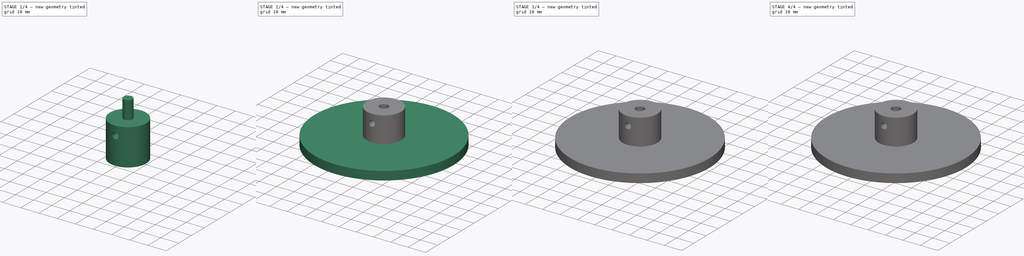
[diagram: build sequence overview — one tinted view per stage of 4, left to right]
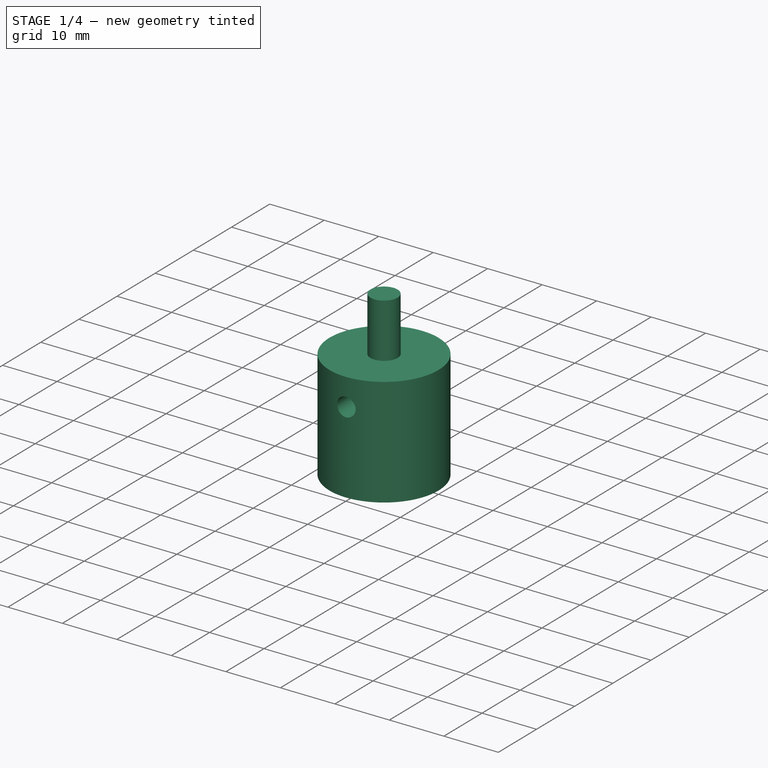
[diagram: stage 1 of 4 — iso view after this stage's code; geometry added in this stage tinted green]
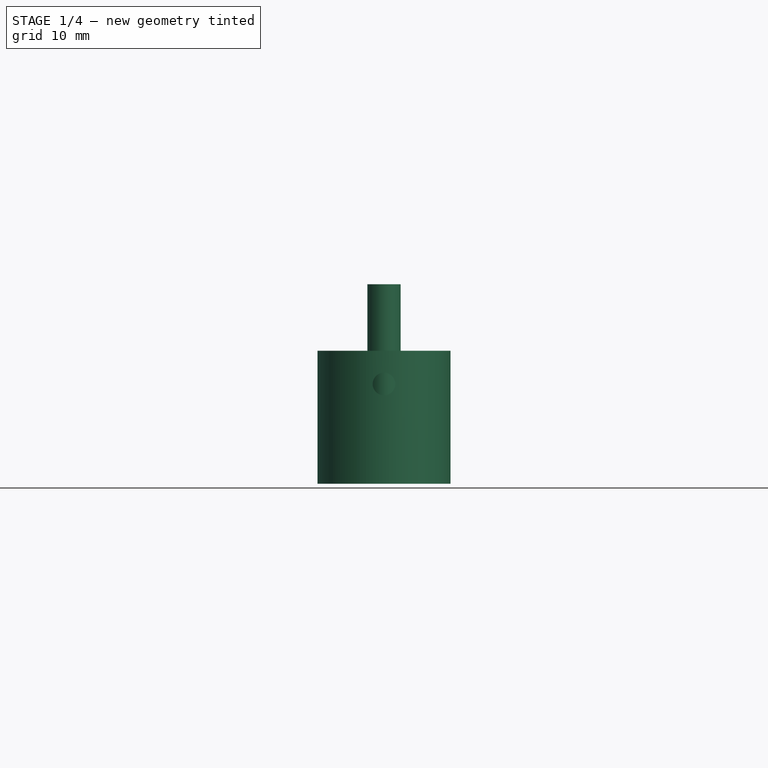
[diagram: stage 1 of 4 — front view after this stage's code; geometry added in this stage tinted green]
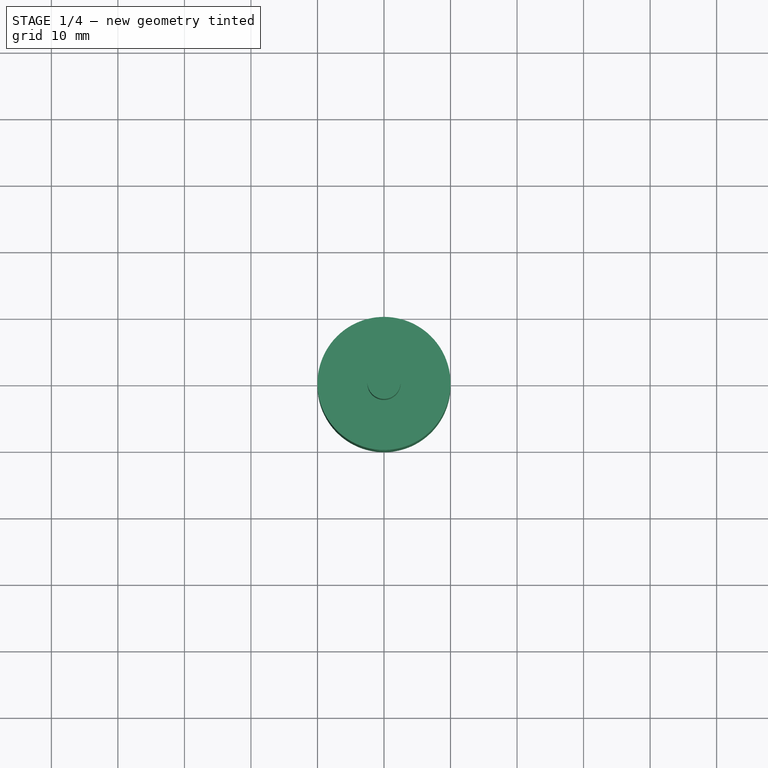
[diagram: stage 1 of 4 — top view after this stage's code; geometry added in this stage tinted green]
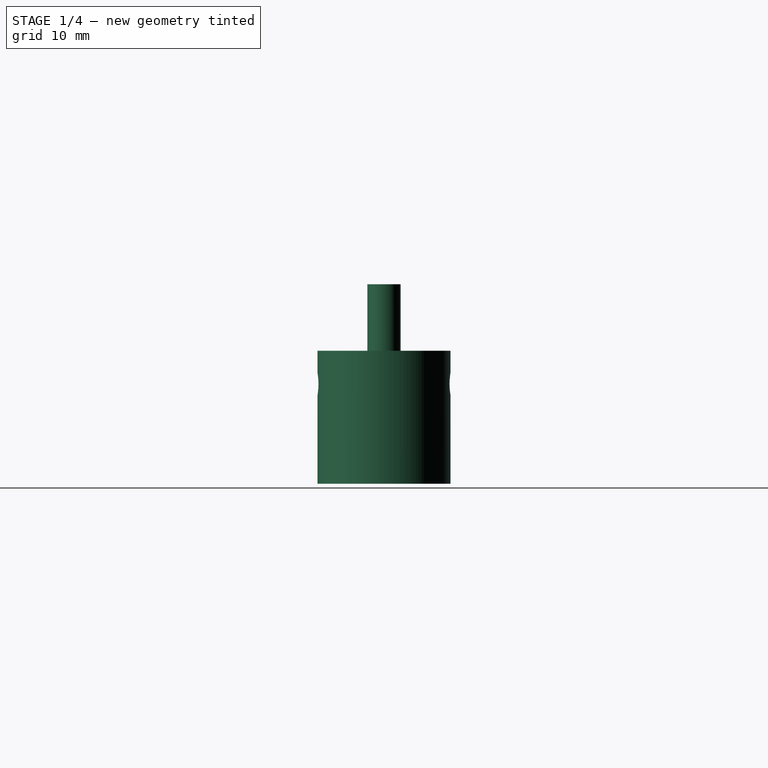
[diagram: stage 1 of 4 — right view after this stage's code; geometry added in this stage tinted green]
FCSTD DOCUMENT  (FreeCAD 0.16R6712 (Git))
Label: ls_bearing
License: All rights reserved
LicenseURL: http://en.wikipedia.org/wiki/All_rights_reserved
objects: Sketcher::SketchObject×8, PartDesign::Pad×5, Part::Cut×5, PartDesign::Revolution×1, Part::Revolution×1, Part::Extrusion×1, Part::MultiFuse×1, App::DocumentObjectGroup×1
note: 28 computed .brp shape members not serialized (recipe doc carries the construction recipe); baked Part::Feature solids carry a one-line shape summary decoded from their .brp

FEATURE [Sketcher::SketchObject] Sketch002  label="cyl"
  sketch-geometry (1):
    g0: Circle CenterX=0 CenterY=0 CenterZ=0 NormalX=0 NormalY=0 NormalZ=1 Radius=10
  constraints (2):
    c: Coincident(g0,g-1)
    c: Radius(g0) = 10
FEATURE [Sketcher::SketchObject] Sketch003  label="shaft_hole"
  sketch-geometry (1):
    g0: Circle CenterX=0 CenterY=0 CenterZ=0 NormalX=0 NormalY=0 NormalZ=1 Radius=2.5
  constraints (2):
    c: Coincident(g0,g-1)
    c: Radius(g0) = 2.5
FEATURE [PartDesign::Pad] Pad001
  Length = 20
  Length2 = 100
  Sketch = -> Sketch002
  Type = 0
FEATURE [PartDesign::Pad] Pad002  label="shaft_hole3d"
  Length = 30
  Length2 = 100
  Sketch = -> Sketch003
  Type = 0
FEATURE [Sketcher::SketchObject] Sketch004  label="set_cut"
  Placement = pos=(0,0,0) rot=(1,0,0;1.5708rad)
  sketch-geometry (1):
    g0: Circle CenterX=0 CenterY=15 CenterZ=0 NormalX=0 NormalY=0 NormalZ=1 Radius=1.7
  constraints (3):
    c: Radius(g0) = 1.7
    c: DistanceX(g0) = 0
    c: DistanceY(g0) = 15
FEATURE [PartDesign::Pad] Pad003
  Length = 30
  Length2 = 100
  Midplane = true
  Placement = pos=(0,0,0) rot=(1,0,0;1.5708rad)
  Sketch = -> Sketch004
  Type = 0
FEATURE [Part::Cut] Cut002
  Base = -> Pad001
  Tool = -> Pad003
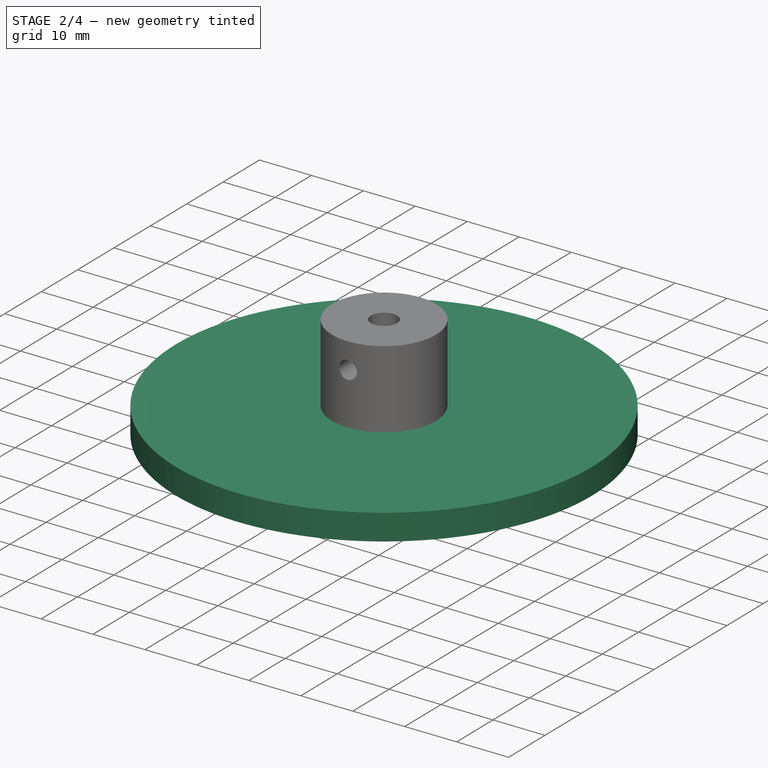
[diagram: stage 2 of 4 — iso view after this stage's code; geometry added in this stage tinted green]
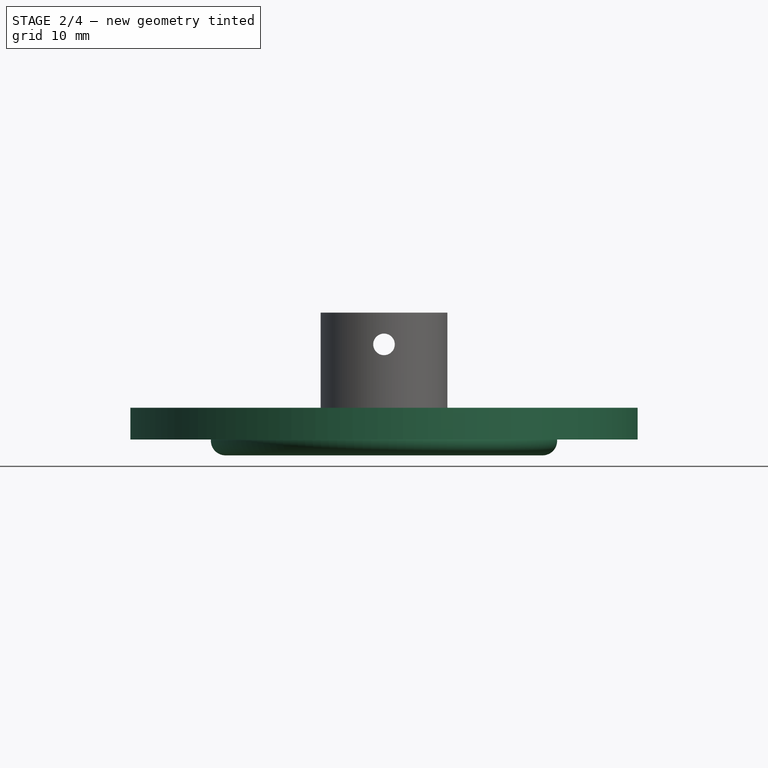
[diagram: stage 2 of 4 — front view after this stage's code; geometry added in this stage tinted green]
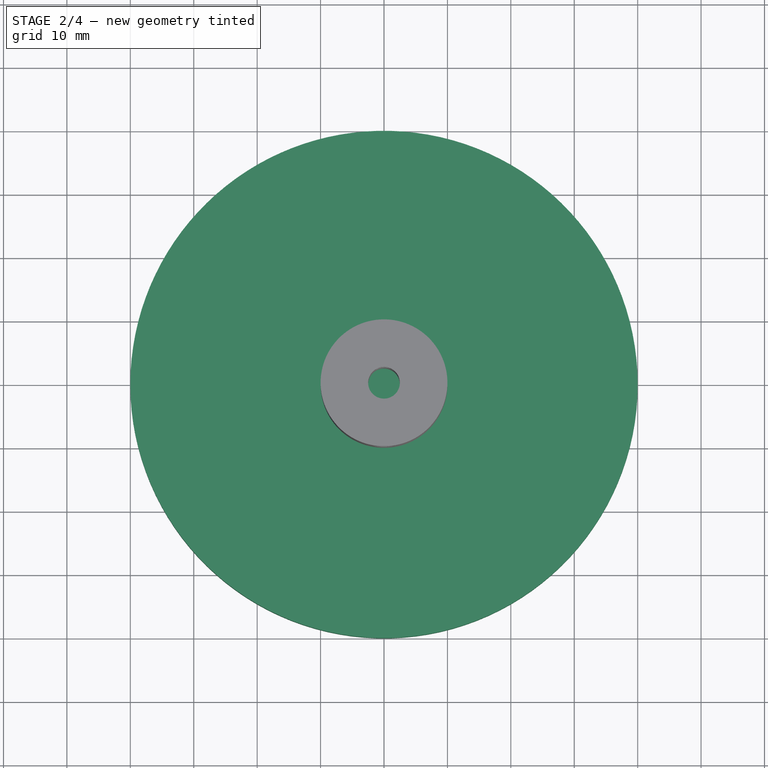
[diagram: stage 2 of 4 — top view after this stage's code; geometry added in this stage tinted green]
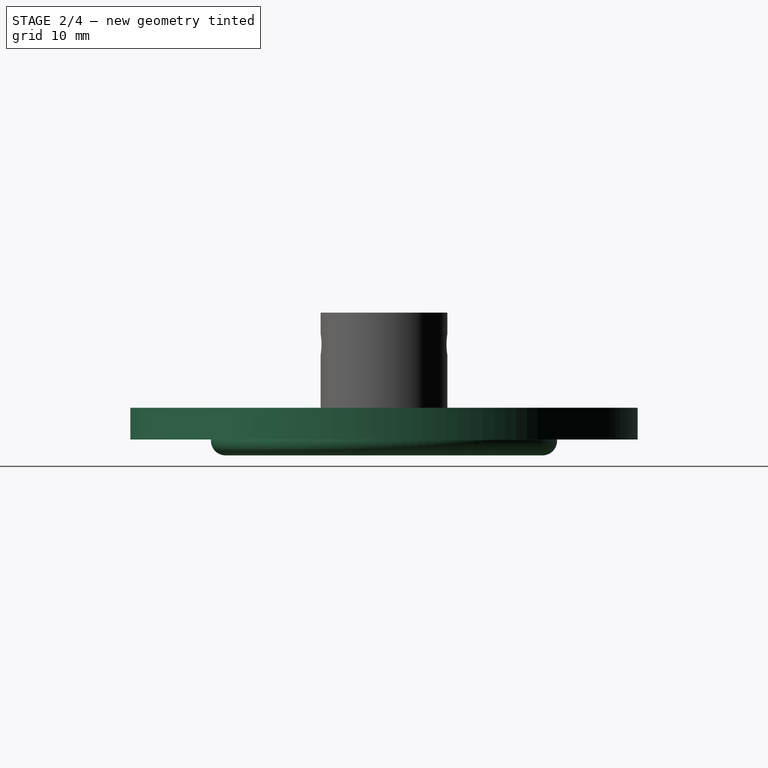
[diagram: stage 2 of 4 — right view after this stage's code; geometry added in this stage tinted green]
FEATURE [Sketcher::SketchObject] Sketch  label="Base"
  sketch-geometry (1):
    g0: Circle CenterX=0 CenterY=0 CenterZ=0 NormalX=0 NormalY=0 NormalZ=1 Radius=40
  constraints (2):
    c: Radius(g0) = 40
    c: Coincident(g0,g-1)
FEATURE [PartDesign::Pad] Pad
  Length = 5
  Length2 = 100
  Sketch = -> Sketch
  Type = 0
FEATURE [Sketcher::SketchObject] Sketch001  label="channel_bot"
  Placement = pos=(0,0,0) rot=(1,0,0;1.5708rad)
  sketch-geometry (1):
    g0: Circle CenterX=25 CenterY=-0.2 CenterZ=0 NormalX=0 NormalY=0 NormalZ=1 Radius=2.3
  constraints (3):
    c: Radius(g0) = 2.3
    c: DistanceX(g0) = 25
    c: DistanceY(g-1,g0) = -0.2
FEATURE [PartDesign::Revolution] Revolution
  Angle = 360
  Axis = (0,0,1)
  Base = (0,0,0)
  Placement = pos=(0,0,0) rot=(1,0,0;1.5708rad)
  ReferenceAxis = -> Sketch001 [V_Axis]
  Reversed = true
  Sketch = -> Sketch001
FEATURE [Part::Cut] Cut003  label="post"
  Base = -> Cut002
  Tool = -> Pad002
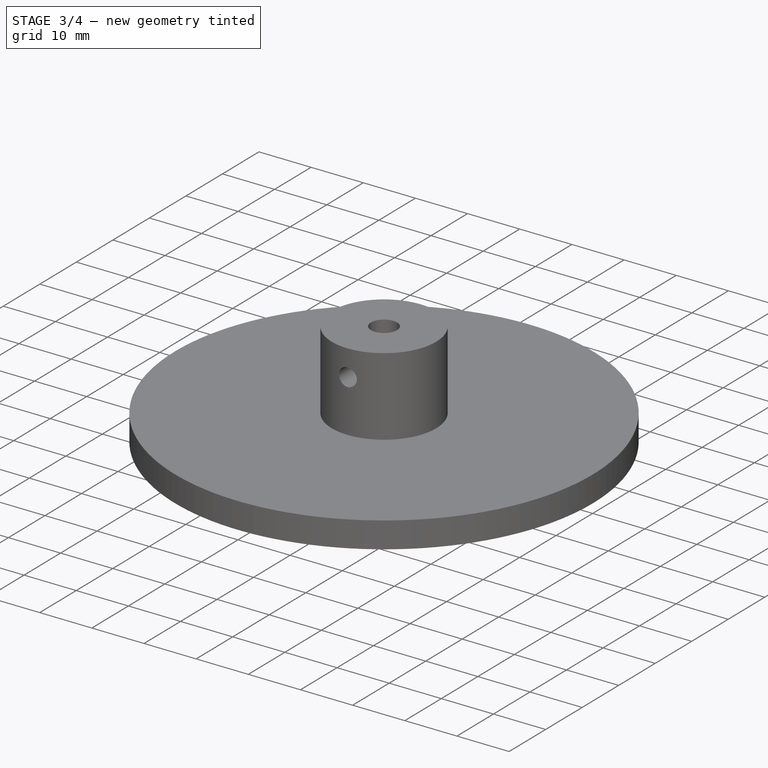
[diagram: stage 3 of 4 — iso view after this stage's code; geometry added in this stage tinted green]
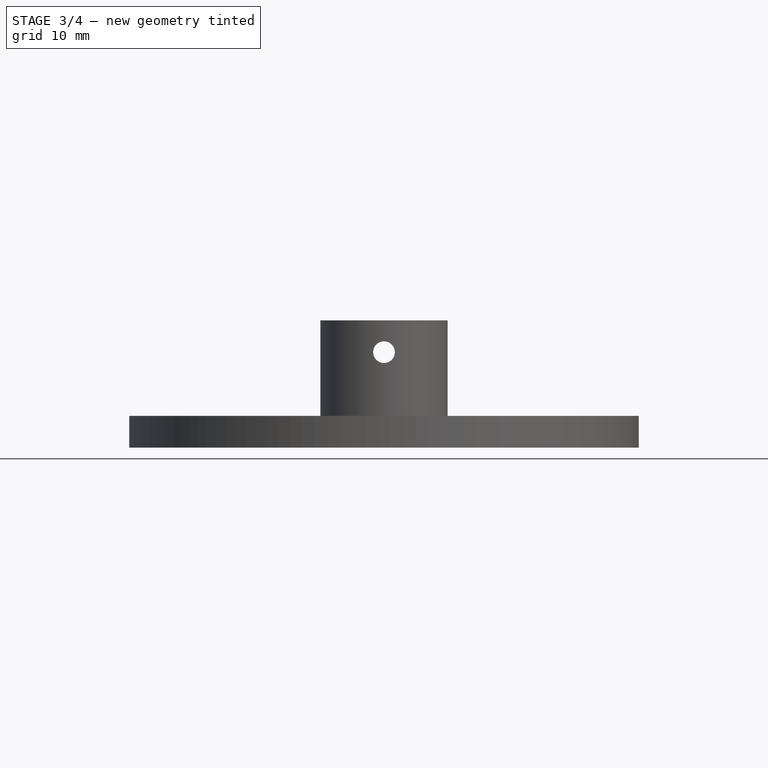
[diagram: stage 3 of 4 — front view after this stage's code; geometry added in this stage tinted green]
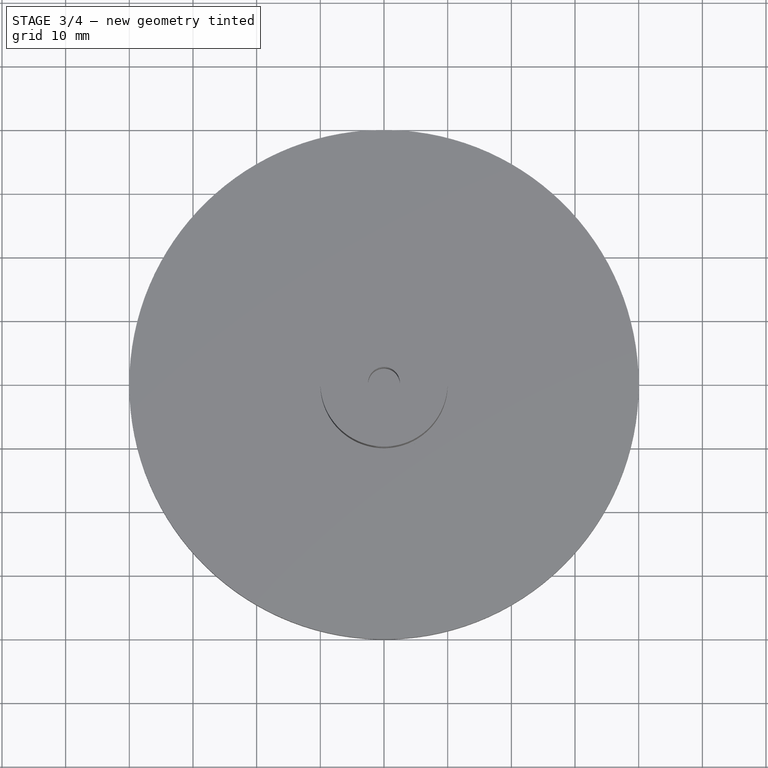
[diagram: stage 3 of 4 — top view after this stage's code; geometry added in this stage tinted green]
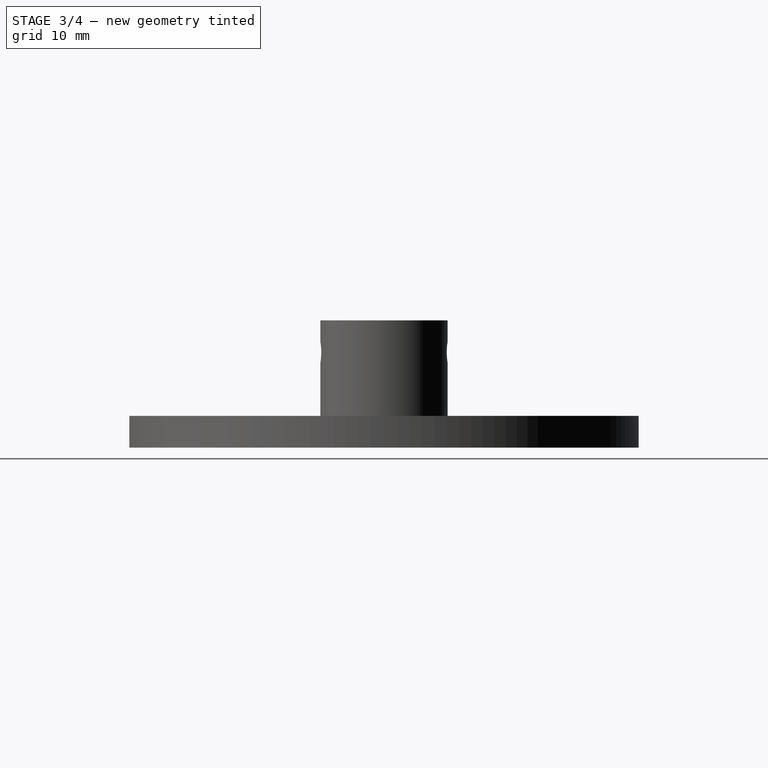
[diagram: stage 3 of 4 — right view after this stage's code; geometry added in this stage tinted green]
FEATURE [Part::Cut] Cut  label="base"
  Base = -> Pad
  Tool = -> Revolution
FEATURE [Sketcher::SketchObject] Sketch007  label="hub_hole"
  sketch-geometry (1):
    g0: Circle CenterX=0 CenterY=0 CenterZ=0 NormalX=0 NormalY=0 NormalZ=1 Radius=10.5
  constraints (2):
    c: Coincident(g0,g-1)
    c: Radius(g0) = 10.5
FEATURE [Part::Extrusion] Extrude  label="hub_hole_ex"
  Base = -> Sketch007
  Dir = (0,0,5)
  Solid = true
FEATURE [Part::MultiFuse] Fusion  label="top_bearing001"
  Shapes = -> [Cut003,Cut]
FEATURE [App::DocumentObjectGroup] Group  label="parts"
  Group = -> [Cut004,Fusion]
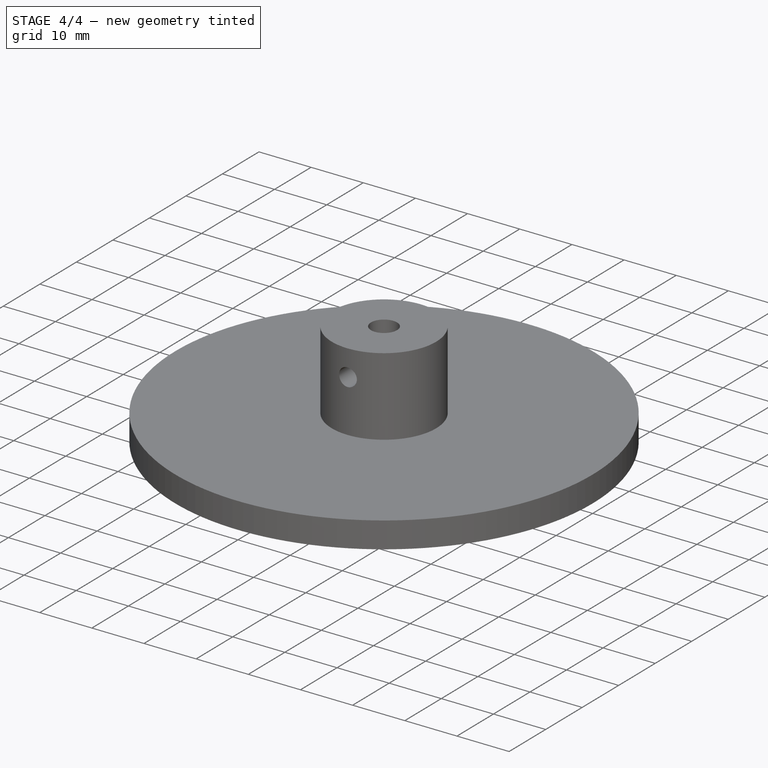
[diagram: stage 4 of 4 — iso view after this stage's code; geometry added in this stage tinted green]
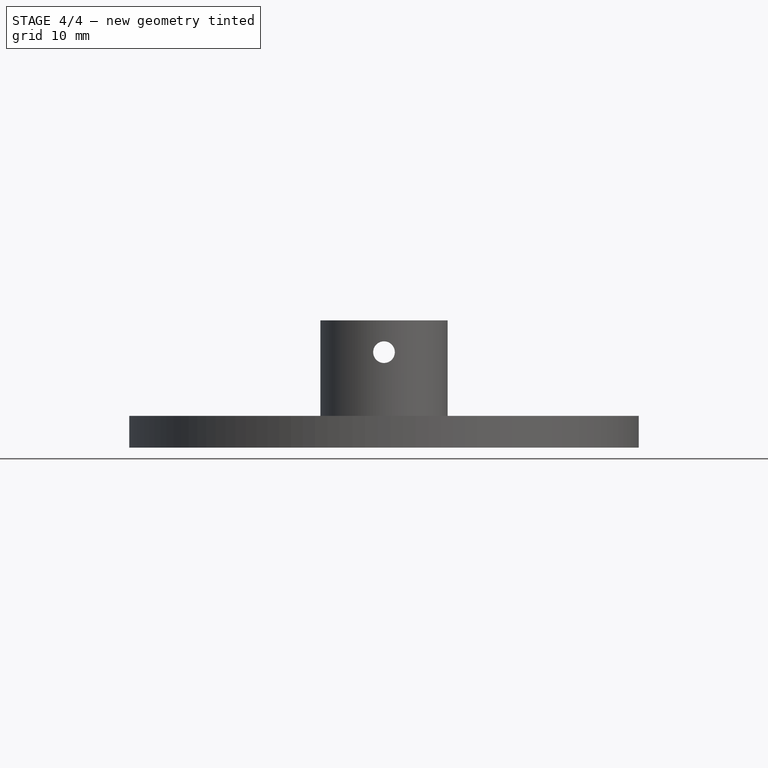
[diagram: stage 4 of 4 — front view after this stage's code; geometry added in this stage tinted green]
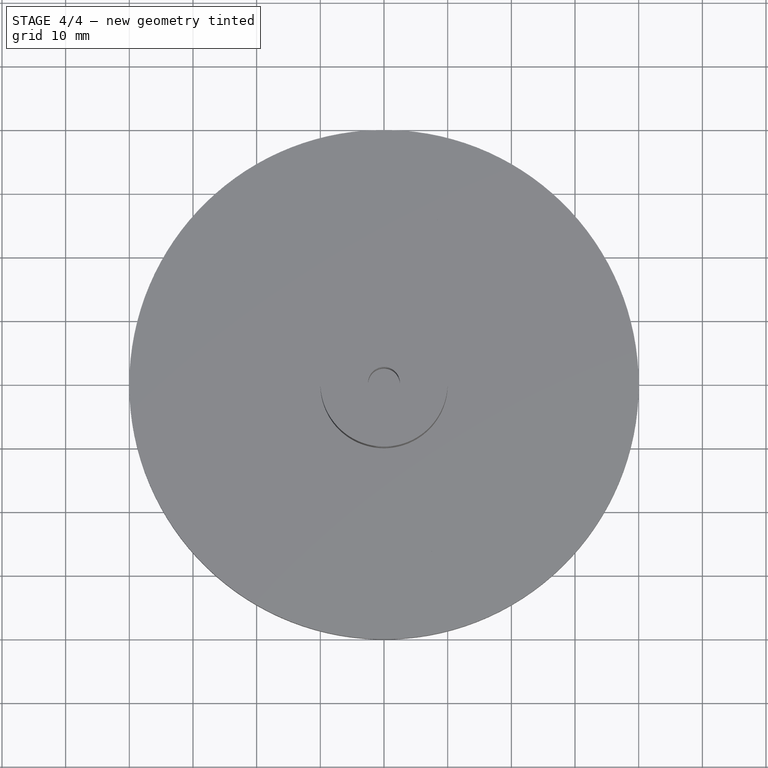
[diagram: stage 4 of 4 — top view after this stage's code; geometry added in this stage tinted green]
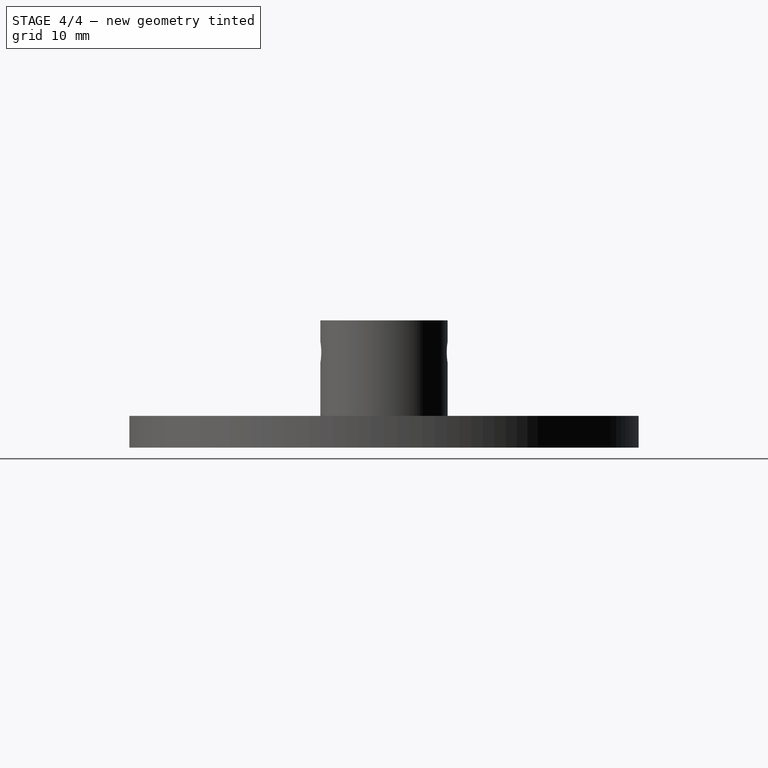
[diagram: stage 4 of 4 — right view after this stage's code; geometry added in this stage tinted green]
FEATURE [Sketcher::SketchObject] Sketch005  label="channel_top"
  Placement = pos=(0,0,0) rot=(1,0,0;1.5708rad)
  sketch-geometry (1):
    g0: Circle CenterX=25 CenterY=5.4 CenterZ=0 NormalX=0 NormalY=0 NormalZ=1 Radius=2.3
  constraints (3):
    c: Radius(g0) = 2.3
    c: DistanceX(g0) = 25
    c: DistanceY(g-1,g0) = 5.4
FEATURE [Part::Revolution] Revolve
  Angle = 360
  Axis = (0,0,1)
  Base = (0,0,0)
  Solid = true
  Source = -> Sketch005
FEATURE [Sketcher::SketchObject] Sketch006  label="Top2d"
  sketch-geometry (1):
    g0: Circle CenterX=0 CenterY=0 CenterZ=0 NormalX=0 NormalY=0 NormalZ=1 Radius=40
  constraints (2):
    c: Radius(g0) = 40
    c: Coincident(g0,g-1)
FEATURE [PartDesign::Pad] Pad004  label="top"
  Length = 5
  Length2 = 100
  Sketch = -> Sketch006
  Type = 0
FEATURE [Part::Cut] Cut001  label="top002"
  Base = -> Pad004
  Tool = -> Extrude
FEATURE [Part::Cut] Cut004  label="bot_bearing"
  Base = -> Cut001
  Tool = -> Revolve
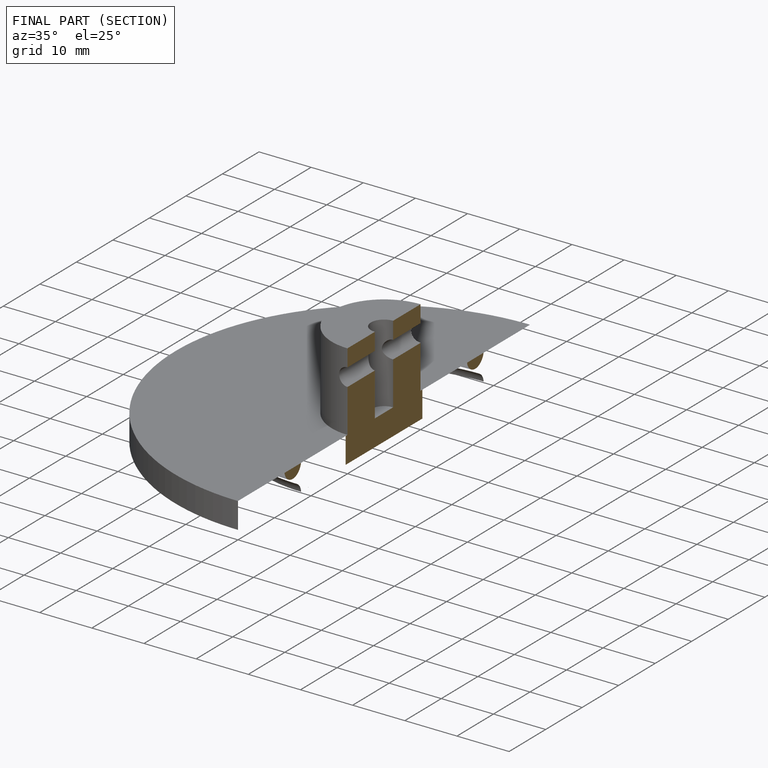
[diagram: finished part — half-section view (interior)]
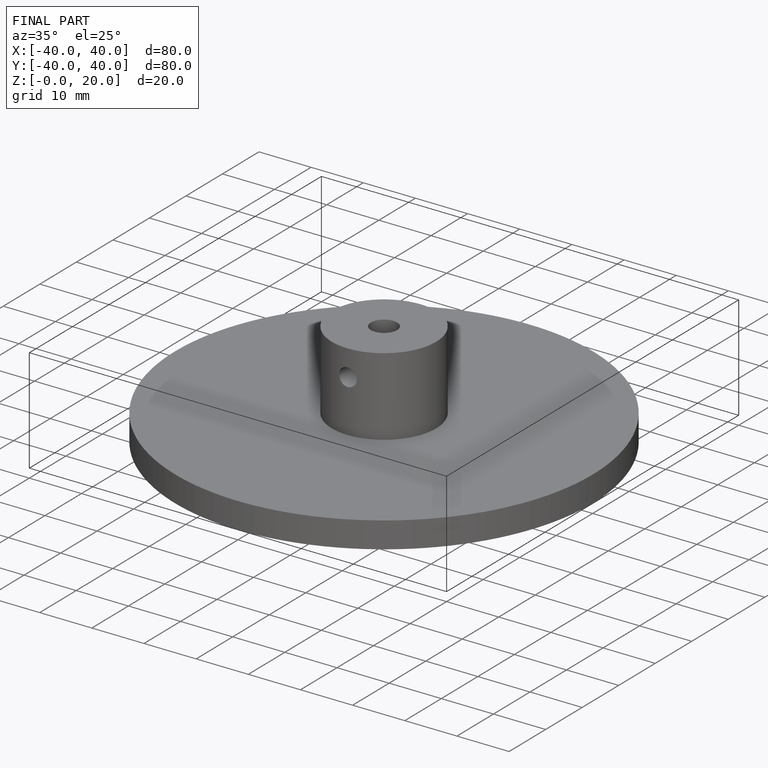
[diagram: finished part — iso view with bounding-box wireframe]
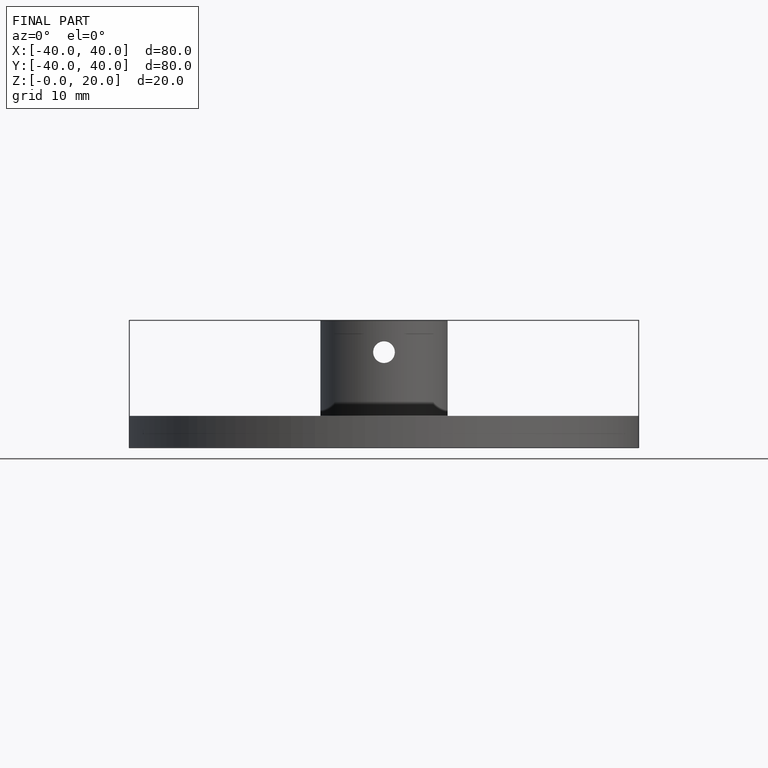
[diagram: finished part — front view with bounding-box wireframe]
